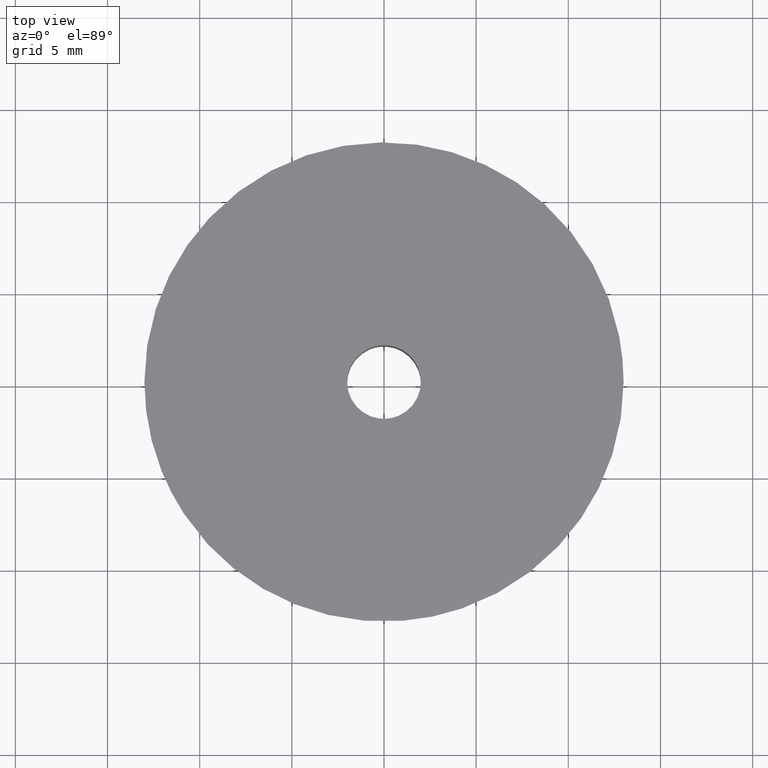
[diagram: clean part render]
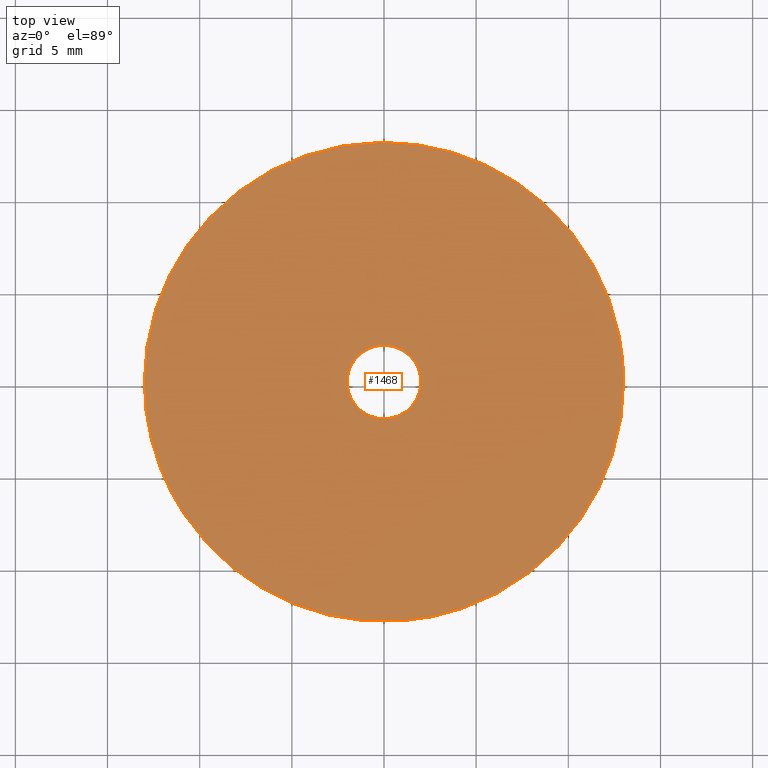
[diagram: same view with one face highlighted and labeled with its STEP entity id]
A machine part, top view. The second image highlights one B-rep face of the part: STEP entity #1468.
In plain terms, the highlighted face is a freeform B-spline surface patch.
Its self-contained STEP definition (entity closure, byte-faithful):
#534=CARTESIAN_POINT('',(1.019960730702716,-12.959925147633779,14.999996100865930));
#535=VERTEX_POINT('',#534);
#541=CARTESIAN_POINT('',(-12.088238353496781,-4.782726349463784,14.999995735543790));
#542=VERTEX_POINT('',#541);
#543=CARTESIAN_POINT('',(1.019960730702716,-12.959925147633777,14.999996100865921));
#544=CARTESIAN_POINT('',(0.510767609050663,-12.999999234903402,14.999996091151854));
#545=CARTESIAN_POINT('',(-0.000000014507366,-12.999999247908530,14.999996080904641));
#546=CARTESIAN_POINT('',(-8.837064459632838,-12.999999472917136,14.999995903612234));
#547=CARTESIAN_POINT('',(-12.088238353496774,-4.782726349463784,14.999995735543795));
#555=(BOUNDED_CURVE()B_SPLINE_CURVE(2,(#543,#544,#545,#546,#547),.UNSPECIFIED.,.F.,.U.)B_SPLINE_CURVE_WITH_KNOTS((3,2,3),(0.736331399210031,0.750000000000000,0.937532605529080),.UNSPECIFIED.)CURVE()GEOMETRIC_REPRESENTATION_ITEM()RATIONAL_B_SPLINE_CURVE((0.969723561895137,0.983986238071800,1.0,0.780291886136457,0.890203252662594))REPRESENTATION_ITEM(''));
#556=EDGE_CURVE('',#535,#542,#555,.T.);
#608=CARTESIAN_POINT('',(-13.0,0.0,15.0));
#609=VERTEX_POINT('',#608);
#610=CARTESIAN_POINT('',(-12.088238353496774,-4.782726349463784,14.999995735543795));
#611=CARTESIAN_POINT('',(-12.999999603462925,-2.478270488527844,14.999997867771894));
#612=CARTESIAN_POINT('',(-13.0,0.0,15.0));
#620=(BOUNDED_CURVE()B_SPLINE_CURVE(2,(#610,#611,#612),.UNSPECIFIED.,.F.,.U.)B_SPLINE_CURVE_WITH_KNOTS((3,3),(0.937532605529080,1.0),.UNSPECIFIED.)CURVE()GEOMETRIC_REPRESENTATION_ITEM()RATIONAL_B_SPLINE_CURVE((0.890203252662594,0.926814895050091,1.0))REPRESENTATION_ITEM(''));
#621=EDGE_CURVE('',#542,#609,#620,.T.);
#623=CARTESIAN_POINT('',(13.0,0.0,15.0));
#624=VERTEX_POINT('',#623);
#625=CARTESIAN_POINT('',(-13.0,0.0,15.0));
#626=CARTESIAN_POINT('',(-13.0,13.0,14.999999999999996));
#627=CARTESIAN_POINT('',(0.0,13.0,15.0));
#628=CARTESIAN_POINT('',(13.0,13.0,14.999999999999996));
#629=CARTESIAN_POINT('',(13.0,0.0,15.0));
#637=(BOUNDED_CURVE()B_SPLINE_CURVE(2,(#625,#626,#627,#628,#629),.UNSPECIFIED.,.F.,.U.)B_SPLINE_CURVE_WITH_KNOTS((3,2,3),(0.0,0.250000000000000,0.500000000000000),.UNSPECIFIED.)CURVE()GEOMETRIC_REPRESENTATION_ITEM()RATIONAL_B_SPLINE_CURVE((1.0,0.707106781186547,1.0,0.707106781186547,1.0))REPRESENTATION_ITEM(''));
#638=EDGE_CURVE('',#609,#624,#637,.T.);
#640=CARTESIAN_POINT('',(13.0,0.0,15.0));
#641=CARTESIAN_POINT('',(12.999999969407883,-12.017082934606062,14.999998050432970));
#642=CARTESIAN_POINT('',(1.019960730702716,-12.959925147633777,14.999996100865921));
#650=(BOUNDED_CURVE()B_SPLINE_CURVE(2,(#640,#641,#642),.UNSPECIFIED.,.F.,.U.)B_SPLINE_CURVE_WITH_KNOTS((3,3),(0.500000000000000,0.736331399210031),.UNSPECIFIED.)CURVE()GEOMETRIC_REPRESENTATION_ITEM()RATIONAL_B_SPLINE_CURVE((1.0,0.723120543114748,0.969723561895137))REPRESENTATION_ITEM(''));
#651=EDGE_CURVE('',#624,#535,#650,.T.);
#739=CARTESIAN_POINT('',(-0.236068469352989,1.986019052722641,15.0));
#740=VERTEX_POINT('',#739);
#741=CARTESIAN_POINT('',(2.0,0.0,15.0));
#742=VERTEX_POINT('',#741);
#743=CARTESIAN_POINT('',(-0.236068469352989,1.986019052722640,15.000000000000004));
#744=CARTESIAN_POINT('',(-0.118448239343709,2.0,15.000000000000005));
#745=CARTESIAN_POINT('',(0.0,2.0,15.0));
#746=CARTESIAN_POINT('',(2.000000000000000,2.000000000000000,14.999999999999995));
#747=CARTESIAN_POINT('',(2.0,0.0,15.0));
#755=(BOUNDED_CURVE()B_SPLINE_CURVE(2,(#743,#744,#745,#746,#747),.UNSPECIFIED.,.F.,.U.)B_SPLINE_CURVE_WITH_KNOTS((3,2,3),(0.229562473508926,0.250000000000000,0.500000000000000),.UNSPECIFIED.)CURVE()GEOMETRIC_REPRESENTATION_ITEM()RATIONAL_B_SPLINE_CURVE((0.956026754174719,0.976055948325777,1.0,0.707106781186548,1.0))REPRESENTATION_ITEM(''));
#756=EDGE_CURVE('',#740,#742,#755,.T.);
#797=CARTESIAN_POINT('',(0.122097079115449,-1.996269596840936,15.0));
#798=VERTEX_POINT('',#797);
#804=CARTESIAN_POINT('',(2.0,0.0,15.0));
#805=CARTESIAN_POINT('',(1.999999999999999,-1.881412133725024,14.999999999999996));
#806=CARTESIAN_POINT('',(0.122097079115448,-1.996269596840936,14.999999999999996));
#814=(BOUNDED_CURVE()B_SPLINE_CURVE(2,(#804,#805,#806),.UNSPECIFIED.,.F.,.U.)B_SPLINE_CURVE_WITH_KNOTS((3,3),(0.500000000000000,0.739332962234062),.UNSPECIFIED.)CURVE()GEOMETRIC_REPRESENTATION_ITEM()RATIONAL_B_SPLINE_CURVE((1.0,0.719603993292428,0.976072041656258))REPRESENTATION_ITEM(''));
#815=EDGE_CURVE('',#742,#798,#814,.T.);
#838=CARTESIAN_POINT('',(-2.0,0.0,15.0));
#839=VERTEX_POINT('',#838);
#840=CARTESIAN_POINT('',(-2.0,0.0,15.0));
#841=CARTESIAN_POINT('',(-2.000000000000000,1.776349051831628,15.0));
#842=CARTESIAN_POINT('',(-0.236068469352989,1.986019052722640,15.000000000000004));
#850=(BOUNDED_CURVE()B_SPLINE_CURVE(2,(#840,#841,#842),.UNSPECIFIED.,.F.,.U.)B_SPLINE_CURVE_WITH_KNOTS((3,3),(0.0,0.229562473508926),.UNSPECIFIED.)CURVE()GEOMETRIC_REPRESENTATION_ITEM()RATIONAL_B_SPLINE_CURVE((1.0,0.731050832860771,0.956026754174719))REPRESENTATION_ITEM(''));
#851=EDGE_CURVE('',#839,#740,#850,.T.);
#853=CARTESIAN_POINT('',(0.122097079115449,-1.996269596840937,15.0));
#854=CARTESIAN_POINT('',(0.061105526643041,-2.000000000000000,15.0));
#855=CARTESIAN_POINT('',(0.0,-2.0,15.0));
#856=CARTESIAN_POINT('',(-2.000000000000000,-2.000000000000000,14.999999999999995));
#857=CARTESIAN_POINT('',(-2.0,0.0,15.0));
#865=(BOUNDED_CURVE()B_SPLINE_CURVE(2,(#853,#854,#855,#856,#857),.UNSPECIFIED.,.F.,.U.)B_SPLINE_CURVE_WITH_KNOTS((3,2,3),(0.739332962234062,0.750000000000000,1.0),.UNSPECIFIED.)CURVE()GEOMETRIC_REPRESENTATION_ITEM()RATIONAL_B_SPLINE_CURVE((0.976072041656257,0.987502787894119,1.0,0.707106781186548,1.0))REPRESENTATION_ITEM(''));
#866=EDGE_CURVE('',#798,#839,#865,.T.);
#1451=CARTESIAN_POINT('',(14.298699949606950,-14.298428788506390,15.0));
#1452=CARTESIAN_POINT('',(-14.298700646981301,-14.298428788506390,15.0));
#1453=CARTESIAN_POINT('',(14.298699949606959,14.298687746846079,15.0));
#1454=CARTESIAN_POINT('',(-14.298700646981301,14.298687746846079,15.0));
#1455=B_SPLINE_SURFACE_WITH_KNOTS('',1,1,((#1451,#1453),(#1452,#1454)),.UNSPECIFIED.,.F.,.F.,.U.,(2,2),(2,2),(0.0,28.597400596588258),(0.0,28.597116535352470),.UNSPECIFIED.);
#1456=ORIENTED_EDGE('',*,*,#621,.F.);
#1457=ORIENTED_EDGE('',*,*,#556,.F.);
#1458=ORIENTED_EDGE('',*,*,#651,.F.);
#1459=ORIENTED_EDGE('',*,*,#638,.F.);
#1460=EDGE_LOOP('',(#1456,#1457,#1458,#1459));
#1461=FACE_OUTER_BOUND('',#1460,.T.);
#1462=ORIENTED_EDGE('',*,*,#815,.T.);
#1463=ORIENTED_EDGE('',*,*,#866,.T.);
#1464=ORIENTED_EDGE('',*,*,#851,.T.);
#1465=ORIENTED_EDGE('',*,*,#756,.T.);
#1466=EDGE_LOOP('',(#1462,#1463,#1464,#1465));
#1467=FACE_BOUND('',#1466,.T.);
#1468=ADVANCED_FACE('',(#1461,#1467),#1455,.F.);